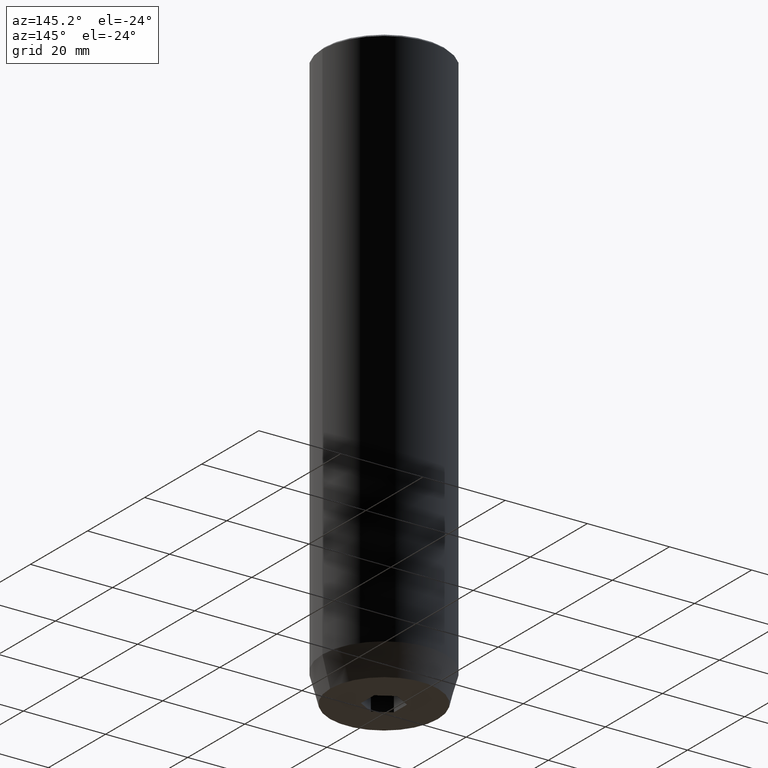
[diagram: clean part render]
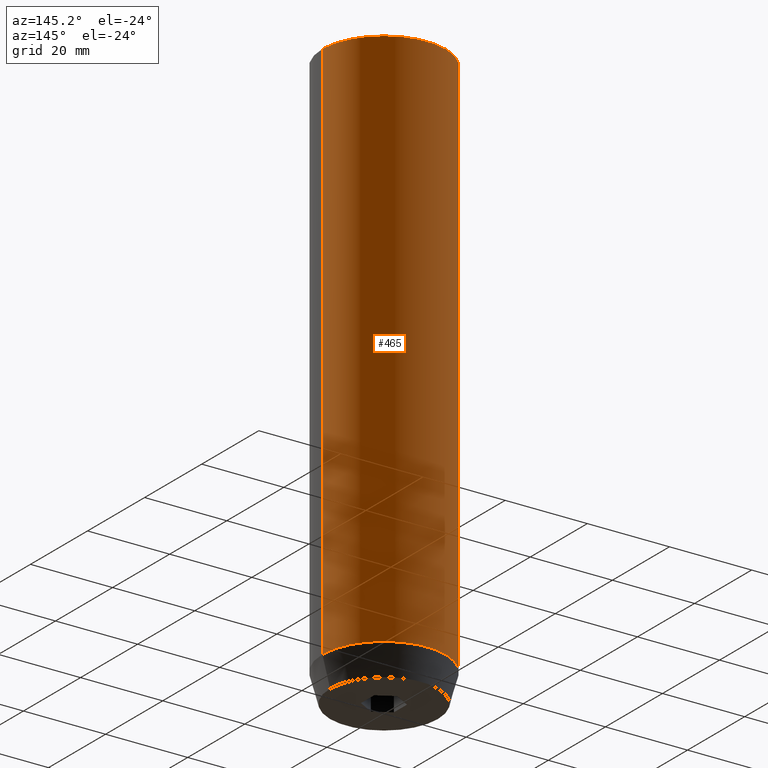
[diagram: same view with one face highlighted and labeled with its STEP entity id]
A machine part, auxiliary view. The second image highlights one B-rep face of the part: STEP entity #465.
In plain terms, the highlighted cylindrical surface (partial cylindrical patch) has radius 15 mm, axis along (-0, -0, 1).
Its self-contained STEP definition (entity closure, byte-faithful):
#6 = EDGE_LOOP ( 'NONE', ( #193, #99, #291, #81 ) ) ;
#17 = CARTESIAN_POINT ( 'NONE',  ( 15.00000000000000000, 0.000000000000000000, -133.0000000000000000 ) ) ;
#23 = DIRECTION ( 'NONE',  ( 1.000000000000000000, 0.000000000000000000, 0.000000000000000000 ) ) ;
#31 = LINE ( 'NONE', #329, #57 ) ;
#40 = VERTEX_POINT ( 'NONE', #405 ) ;
#45 = VERTEX_POINT ( 'NONE', #113 ) ;
#57 = VECTOR ( 'NONE', #523, 1000.000000000000000 ) ;
#67 = CIRCLE ( 'NONE', #319, 15.00000000000000000 ) ;
#80 = CARTESIAN_POINT ( 'NONE',  ( 0.000000000000000000, 0.000000000000000000, -133.0000000000000000 ) ) ;
#81 = ORIENTED_EDGE ( 'NONE', *, *, #599, .F. ) ;
#99 = ORIENTED_EDGE ( 'NONE', *, *, #262, .T. ) ;
#105 = CARTESIAN_POINT ( 'NONE',  ( 0.000000000000000000, 0.000000000000000000, 0.000000000000000000 ) ) ;
#112 = EDGE_CURVE ( 'NONE', #45, #40, #67, .T. ) ;
#113 = CARTESIAN_POINT ( 'NONE',  ( -15.00000000000000000, 1.836970198721029589E-15, -0.4999999999999970024 ) ) ;
#121 = DIRECTION ( 'NONE',  ( -0.000000000000000000, -0.000000000000000000, 1.000000000000000000 ) ) ;
#140 = CIRCLE ( 'NONE', #221, 15.00000000000000000 ) ;
#193 = ORIENTED_EDGE ( 'NONE', *, *, #284, .T. ) ;
#197 = FACE_OUTER_BOUND ( 'NONE', #6, .T. ) ;
#208 = DIRECTION ( 'NONE',  ( 0.000000000000000000, 0.000000000000000000, -1.000000000000000000 ) ) ;
#221 = AXIS2_PLACEMENT_3D ( 'NONE', #80, #487, #235 ) ;
#235 = DIRECTION ( 'NONE',  ( 1.000000000000000000, 0.000000000000000000, 0.000000000000000000 ) ) ;
#238 = CARTESIAN_POINT ( 'NONE',  ( -15.00000000000000000, 1.836970198721029589E-15, -133.0000000000000000 ) ) ;
#261 = CARTESIAN_POINT ( 'NONE',  ( 0.000000000000000000, 0.000000000000000000, -0.4999999999999970024 ) ) ;
#262 = EDGE_CURVE ( 'NONE', #287, #45, #31, .T. ) ;
#264 = CARTESIAN_POINT ( 'NONE',  ( 15.00000000000000000, 0.000000000000000000, 0.000000000000000000 ) ) ;
#284 = EDGE_CURVE ( 'NONE', #580, #287, #140, .T. ) ;
#287 = VERTEX_POINT ( 'NONE', #238 ) ;
#291 = ORIENTED_EDGE ( 'NONE', *, *, #112, .T. ) ;
#319 = AXIS2_PLACEMENT_3D ( 'NONE', #261, #208, #23 ) ;
#328 = LINE ( 'NONE', #264, #505 ) ;
#329 = CARTESIAN_POINT ( 'NONE',  ( -15.00000000000000000, 1.836970198721029589E-15, 0.000000000000000000 ) ) ;
#405 = CARTESIAN_POINT ( 'NONE',  ( 15.00000000000000000, 0.000000000000000000, -0.4999999999999970024 ) ) ;
#407 = CYLINDRICAL_SURFACE ( 'NONE', #474, 15.00000000000000000 ) ;
#448 = DIRECTION ( 'NONE',  ( 1.000000000000000000, 0.000000000000000000, 0.000000000000000000 ) ) ;
#459 = DIRECTION ( 'NONE',  ( -0.000000000000000000, -0.000000000000000000, 1.000000000000000000 ) ) ;
#465 = ADVANCED_FACE ( 'NONE', ( #197 ), #407, .T. ) ;
#474 = AXIS2_PLACEMENT_3D ( 'NONE', #105, #459, #448 ) ;
#487 = DIRECTION ( 'NONE',  ( -0.000000000000000000, -0.000000000000000000, 1.000000000000000000 ) ) ;
#505 = VECTOR ( 'NONE', #121, 1000.000000000000000 ) ;
#523 = DIRECTION ( 'NONE',  ( -0.000000000000000000, -0.000000000000000000, 1.000000000000000000 ) ) ;
#580 = VERTEX_POINT ( 'NONE', #17 ) ;
#599 = EDGE_CURVE ( 'NONE', #580, #40, #328, .T. ) ;